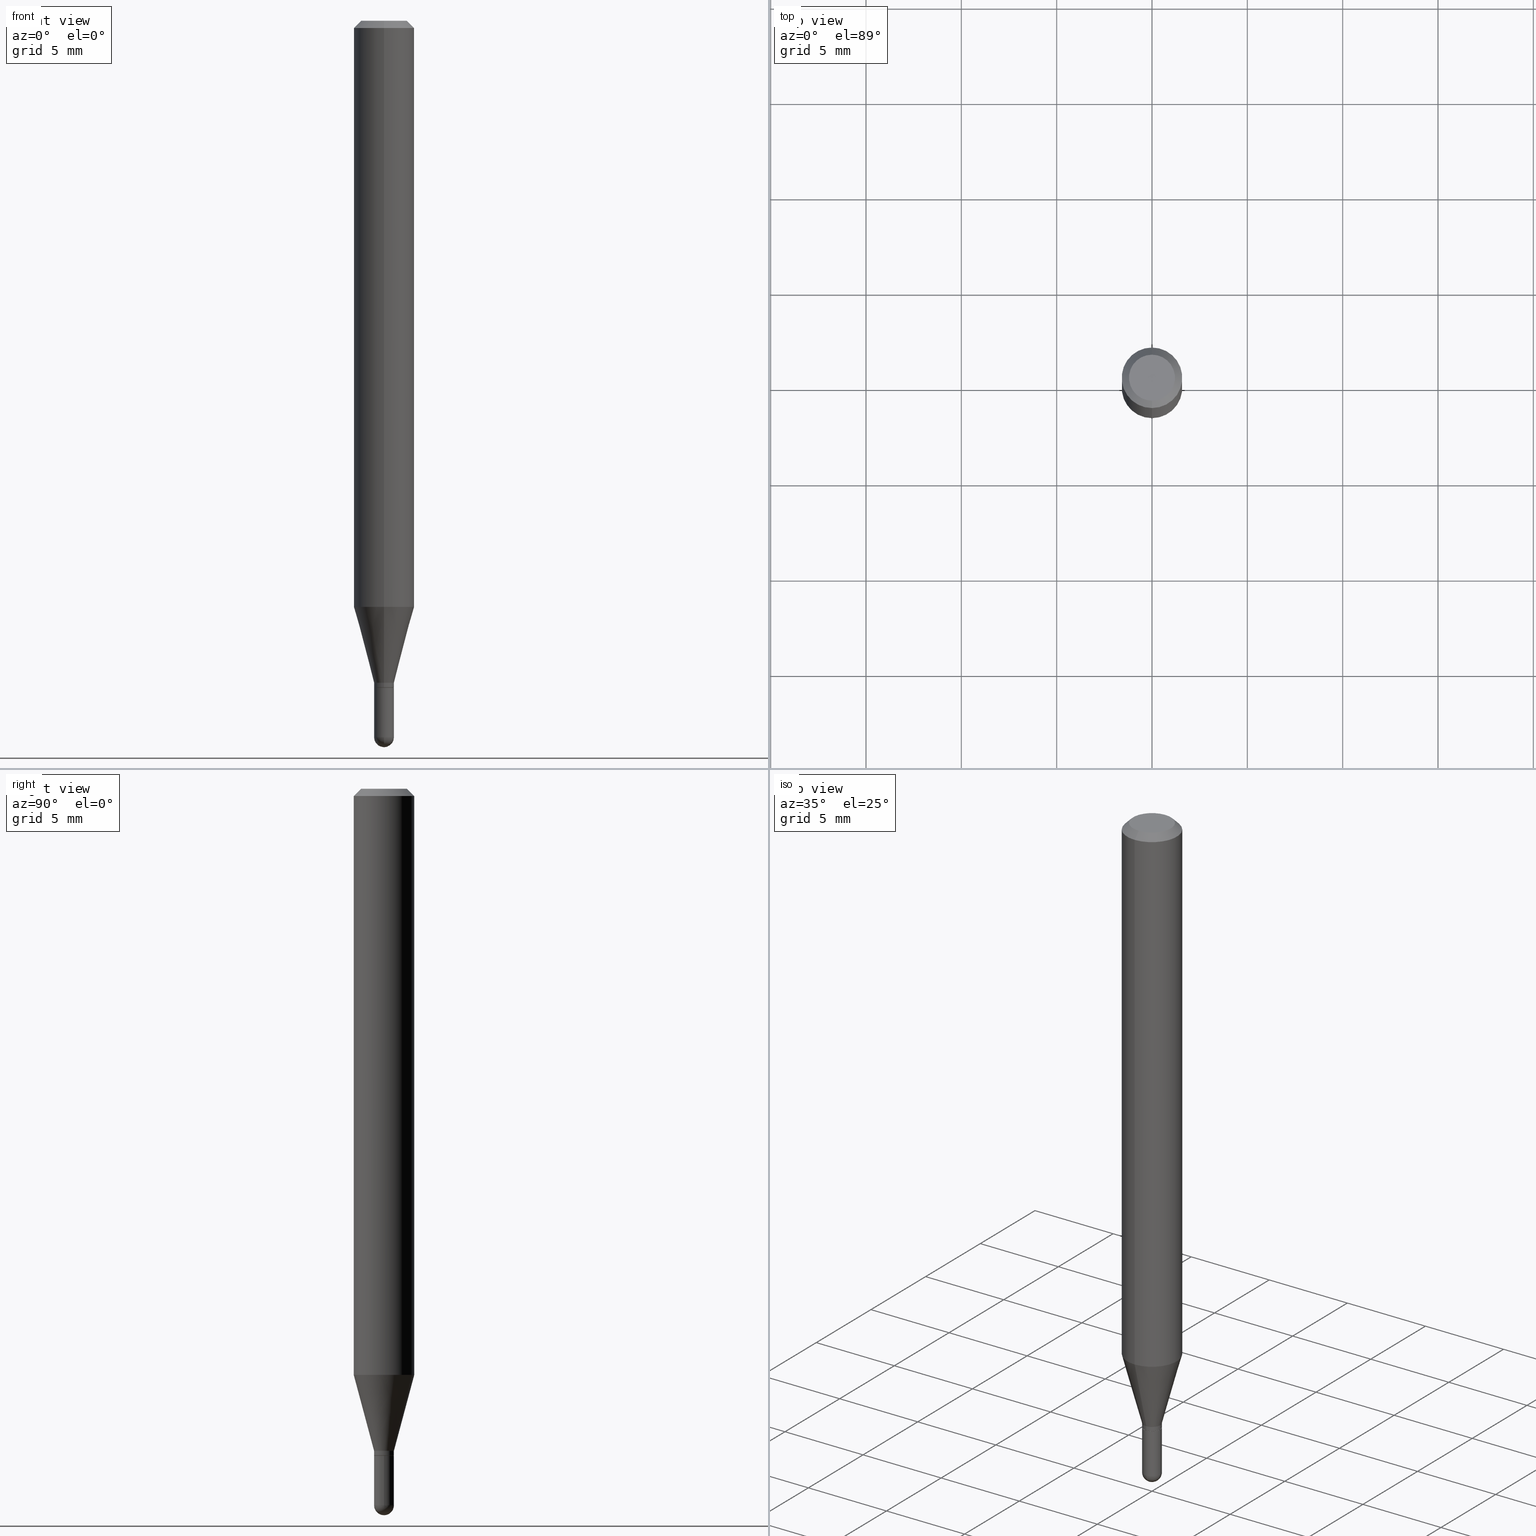
[diagram: canonical four-view strip — front | top / right | iso, engineering-drawing reading convention]
A machine part, canonical four-view strip (front | top / right | iso — engineering-drawing reading convention). The complete STEP part file that produces these views, byte-faithful:
ISO-10303-21;
HEADER;
FILE_DESCRIPTION (( 'STEP AP203' ),
    '1' );
FILE_NAME ('02572.STEP',
    '2024-03-07T20:30:37',
    ( '' ),
    ( '' ),
    'SwSTEP 2.0',
    'SolidWorks 2023',
    '' );
FILE_SCHEMA (( 'CONFIG_CONTROL_DESIGN' ));
ENDSEC;

DATA;
#1 = VERTEX_POINT ( 'NONE', #176 ) ;
#2 = CARTESIAN_POINT ( 'NONE',  ( 3.618071098750910124E-29, -5.165646640818434953E-15, -1.479500000000000259 ) ) ;
#3 = VERTEX_POINT ( 'NONE', #367 ) ;
#4 = EDGE_CURVE ( 'NONE', #44, #3, #402, .T. ) ;
#5 = CARTESIAN_POINT ( 'NONE',  ( 3.365955792450699475E-29, -4.806356327708124914E-15, -1.376500000000000279 ) ) ;
#6 = CONICAL_SURFACE ( 'NONE', #311, 0.02000000000000000042, 0.7853981633974739252 ) ;
#7 = AXIS2_PLACEMENT_3D ( 'NONE', #284, #55, #471 ) ;
#8 = PERSON_AND_ORGANIZATION ( #374, #202 ) ;
#9 = DIRECTION ( 'NONE',  ( -4.851104656540964275E-15, -0.7071067811865500152, -0.7071067811865450192 ) ) ;
#10 = LINE ( 'NONE', #246, #138 ) ;
#11 = FACE_OUTER_BOUND ( 'NONE', #241, .T. ) ;
#12 = CYLINDRICAL_SURFACE ( 'NONE', #157, 0.06250000000000000000 ) ;
#13 = PERSON_AND_ORGANIZATION_ROLE ( 'design_owner' ) ;
#14 = APPROVAL_PERSON_ORGANIZATION ( #184, #380, #447 ) ;
#15 = VERTEX_POINT ( 'NONE', #490 ) ;
#16 = EDGE_CURVE ( 'NONE', #127, #327, #251, .T. ) ;
#17 = APPROVAL_DATE_TIME ( #59, #217 ) ;
#18 = FACE_OUTER_BOUND ( 'NONE', #46, .T. ) ;
#19 = PERSON_AND_ORGANIZATION ( #374, #202 ) ;
#20 = ADVANCED_FACE ( 'NONE', ( #11 ), #369, .F. ) ;
#21 = FACE_OUTER_BOUND ( 'NONE', #238, .T. ) ;
#22 = VERTEX_POINT ( 'NONE', #409 ) ;
#23 = CIRCLE ( 'NONE', #201, 0.04749999999999999362 ) ;
#24 = DIMENSIONAL_EXPONENTS ( 1.000000000000000000, 0.000000000000000000, 0.000000000000000000, 0.000000000000000000, 0.000000000000000000, 0.000000000000000000, 0.000000000000000000 ) ;
#25 = CARTESIAN_POINT ( 'NONE',  ( 3.667950373175560417E-31, -5.237584083953756737E-17, -0.01500000000000032904 ) ) ;
#26 =( GEOMETRIC_REPRESENTATION_CONTEXT ( 3 ) GLOBAL_UNCERTAINTY_ASSIGNED_CONTEXT ( ( #325 ) ) GLOBAL_UNIT_ASSIGNED_CONTEXT ( ( #93, #215, #408 ) ) REPRESENTATION_CONTEXT ( 'NONE', 'WORKASPACE' ) );
#27 = DIRECTION ( 'NONE',  ( -2.445300248783653263E-29, 3.491722722635760763E-15, 1.000000000000000000 ) ) ;
#28 = ADVANCED_FACE ( 'NONE', ( #90 ), #12, .T. ) ;
#29 = DIRECTION ( 'NONE',  ( -6.982962677686266711E-15, -1.000000000000000000, 3.491722722635760763E-15 ) ) ;
#30 = LINE ( 'NONE', #111, #58 ) ;
#31 = CIRCLE ( 'NONE', #167, 0.02000000000000000042 ) ;
#32 = AXIS2_PLACEMENT_3D ( 'NONE', #358, #511, #192 ) ;
#33 = ORIENTED_EDGE ( 'NONE', *, *, #165, .T. ) ;
#34 = DIRECTION ( 'NONE',  ( 5.024295867788190974E-15, 0.7071067811865681119, 0.7071067811865270336 ) ) ;
#35 = EDGE_CURVE ( 'NONE', #3, #127, #77, .T. ) ;
#36 = ORIENTED_EDGE ( 'NONE', *, *, #365, .F. ) ;
#37 = DIRECTION ( 'NONE',  ( -2.445300248783653263E-29, 3.491722722635761158E-15, 1.000000000000000000 ) ) ;
#38 = DIRECTION ( 'NONE',  ( -6.982962677686265133E-15, -1.000000000000000000, 0.000000000000000000 ) ) ;
#39 = ORIENTED_EDGE ( 'NONE', *, *, #271, .F. ) ;
#40 = AXIS2_PLACEMENT_3D ( 'NONE', #144, #298, #83 ) ;
#41 = ORIENTED_EDGE ( 'NONE', *, *, #389, .T. ) ;
#42 = CIRCLE ( 'NONE', #464, 0.06250000000000000000 ) ;
#43 = CARTESIAN_POINT ( 'NONE',  ( 3.618071098750910124E-29, -5.165646640818434953E-15, -1.479500000000000259 ) ) ;
#44 = VERTEX_POINT ( 'NONE', #141 ) ;
#45 = MECHANICAL_CONTEXT ( 'NONE', #315, 'mechanical' ) ;
#46 = EDGE_LOOP ( 'NONE', ( #398, #292, #276, #392 ) ) ;
#47 = CARTESIAN_POINT ( 'NONE',  ( 2.959434079821957539E-29, -4.225870924356675261E-15, -1.210253866082108276 ) ) ;
#48 = ORIENTED_EDGE ( 'NONE', *, *, #400, .F. ) ;
#49 = CIRCLE ( 'NONE', #220, 0.02049999999999999392 ) ;
#50 = DIRECTION ( 'NONE',  ( -6.982962677686265922E-15, -1.000000000000000000, 3.491722722635761158E-15 ) ) ;
#51 = DIRECTION ( 'NONE',  ( -2.445300248783652983E-29, 3.491722722635760763E-15, 1.000000000000000000 ) ) ;
#52 = EDGE_CURVE ( 'NONE', #44, #386, #116, .T. ) ;
#53 = CYLINDRICAL_SURFACE ( 'NONE', #354, 0.02049999999999992800 ) ;
#54 = ORIENTED_EDGE ( 'NONE', *, *, #75, .T. ) ;
#55 = DIRECTION ( 'NONE',  ( -2.445300248783653263E-29, 3.491722722635761158E-15, 1.000000000000000000 ) ) ;
#56 = DIRECTION ( 'NONE',  ( -2.445300248783653263E-29, 3.491722722635761158E-15, 1.000000000000000000 ) ) ;
#57 = CIRCLE ( 'NONE', #473, 0.02049999999999999392 ) ;
#58 = VECTOR ( 'NONE', #122, 39.37007874015748143 ) ;
#59 = DATE_AND_TIME ( #231, #373 ) ;
#60 = CC_DESIGN_APPROVAL ( #217, ( #434 ) ) ;
#61 = FACE_OUTER_BOUND ( 'NONE', #308, .T. ) ;
#62 = COORDINATED_UNIVERSAL_TIME_OFFSET ( 5, 0, .BEHIND. ) ;
#63 = FACE_OUTER_BOUND ( 'NONE', #203, .T. ) ;
#64 = DATE_TIME_ROLE ( 'classification_date' ) ;
#65 = DIRECTION ( 'NONE',  ( -6.982962677686265922E-15, -1.000000000000000000, 3.483106191921935554E-15 ) ) ;
#66 = CALENDAR_DATE ( 2024, 7, 3 ) ;
#67 = DIRECTION ( 'NONE',  ( 1.000000000000000000, -6.982962677686267499E-15, 4.876176775795935232E-29 ) ) ;
#68 = CIRCLE ( 'NONE', #421, 0.02049999999999992453 ) ;
#69 = CC_DESIGN_PERSON_AND_ORGANIZATION_ASSIGNMENT ( #19, #497, ( #479 ) ) ;
#70 = EDGE_CURVE ( 'NONE', #481, #283, #478, .T. ) ;
#71 = DIRECTION ( 'NONE',  ( 6.982962677686265922E-15, 1.000000000000000000, -3.491722722635760763E-15 ) ) ;
#72 = ADVANCED_BREP_SHAPE_REPRESENTATION ( '02572', ( #181, #175, #413 ), #26 ) ;
#73 = DIRECTION ( 'NONE',  ( 1.000000000000000000, -6.982962677686264344E-15, 0.000000000000000000 ) ) ;
#74 = ORIENTED_EDGE ( 'NONE', *, *, #365, .T. ) ;
#75 = EDGE_CURVE ( 'NONE', #405, #82, #411, .T. ) ;
#76 = CARTESIAN_POINT ( 'NONE',  ( -1.396592535536916646E-16, -0.02000000000000480560, -1.377000000000000002 ) ) ;
#77 = CIRCLE ( 'NONE', #227, 0.02049999999999993494 ) ;
#78 = EDGE_LOOP ( 'NONE', ( #163, #85, #41, #249, #81 ) ) ;
#79 = DIRECTION ( 'NONE',  ( 6.982962677686265922E-15, 1.000000000000000000, -3.483106191921935554E-15 ) ) ;
#80 = DIRECTION ( 'NONE',  ( -2.445300248783653263E-29, 3.491722722635761158E-15, 1.000000000000000000 ) ) ;
#81 = ORIENTED_EDGE ( 'NONE', *, *, #457, .F. ) ;
#82 = VERTEX_POINT ( 'NONE', #232 ) ;
#83 = DIRECTION ( 'NONE',  ( -6.982962677686266711E-15, -1.000000000000000000, 0.000000000000000000 ) ) ;
#84 = EDGE_CURVE ( 'NONE', #22, #283, #105, .T. ) ;
#85 = ORIENTED_EDGE ( 'NONE', *, *, #278, .T. ) ;
#86 = CARTESIAN_POINT ( 'NONE',  ( 3.616318007858092069E-29, -5.168157166756686411E-15, -1.479500000000000259 ) ) ;
#87 = ORIENTED_EDGE ( 'NONE', *, *, #476, .F. ) ;
#88 = ORIENTED_EDGE ( 'NONE', *, *, #487, .F. ) ;
#89 = FACE_OUTER_BOUND ( 'NONE', #462, .T. ) ;
#90 = FACE_OUTER_BOUND ( 'NONE', #218, .T. ) ;
#91 = VECTOR ( 'NONE', #51, 39.37007874015748143 ) ;
#92 = CIRCLE ( 'NONE', #503, 0.02049999999999999392 ) ;
#93 =( CONVERSION_BASED_UNIT ( 'INCH', #206 ) LENGTH_UNIT ( ) NAMED_UNIT ( #24 ) );
#94 = ORIENTED_EDGE ( 'NONE', *, *, #459, .T. ) ;
#95 = CARTESIAN_POINT ( 'NONE',  ( -3.773273898774340269E-16, -0.04749999999999999362, -1.622786526568118338E-16 ) ) ;
#96 = VERTEX_POINT ( 'NONE', #98 ) ;
#97 = DATE_TIME_ROLE ( 'creation_date' ) ;
#98 = CARTESIAN_POINT ( 'NONE',  ( 1.456612608308570783E-16, 0.02049999999999488690, -1.479500000000000259 ) ) ;
#99 = ADVANCED_FACE ( 'NONE', ( #449 ), #339, .T. ) ;
#100 = CIRCLE ( 'NONE', #448, 0.06250000000000000000 ) ;
#101 = CIRCLE ( 'NONE', #396, 0.04749999999999999362 ) ;
#102 = PERSON_AND_ORGANIZATION_ROLE ( 'classification_officer' ) ;
#103 = CARTESIAN_POINT ( 'NONE',  ( 2.948752353404729004E-16, 0.02049999999999516098, -1.367000000000000437 ) ) ;
#104 = APPROVAL_DATE_TIME ( #267, #380 ) ;
#105 = LINE ( 'NONE', #452, #125 ) ;
#106 = PERSON_AND_ORGANIZATION_ROLE ( 'creator' ) ;
#107 = FACE_OUTER_BOUND ( 'NONE', #118, .T. ) ;
#108 = CIRCLE ( 'NONE', #190, 0.02049999999999993494 ) ;
#109 = DIRECTION ( 'NONE',  ( 2.445300248783653263E-29, -3.491722722635761158E-15, -1.000000000000000000 ) ) ;
#110 = LOCAL_TIME ( 15, 30, 37.00000000000000000, #333 ) ;
#111 = CARTESIAN_POINT ( 'NONE',  ( 0.02049999999999999739, -1.431507348925684695E-16, 9.996162390381665713E-31 ) ) ;
#112 = EDGE_CURVE ( 'NONE', #3, #22, #268, .T. ) ;
#113 = DIRECTION ( 'NONE',  ( -6.982962677686265133E-15, -1.000000000000000000, 0.000000000000000000 ) ) ;
#114 = ORIENTED_EDGE ( 'NONE', *, *, #75, .F. ) ;
#115 = LINE ( 'NONE', #306, #426 ) ;
#116 = CIRCLE ( 'NONE', #235, 0.02049999999999992453 ) ;
#117 = VECTOR ( 'NONE', #34, 39.37007874015748143 ) ;
#118 = EDGE_LOOP ( 'NONE', ( #427, #205, #352, #507 ) ) ;
#119 = FACE_OUTER_BOUND ( 'NONE', #198, .T. ) ;
#120 = ORIENTED_EDGE ( 'NONE', *, *, #324, .F. ) ;
#121 = ADVANCED_FACE ( 'NONE', ( #383 ), #266, .T. ) ;
#122 = DIRECTION ( 'NONE',  ( -2.445468806185136877E-29, 3.491481338843145188E-15, 1.000000000000000000 ) ) ;
#123 = ORIENTED_EDGE ( 'NONE', *, *, #500, .T. ) ;
#124 = DIRECTION ( 'NONE',  ( 1.000000000000000000, 0.000000000000000000, 0.000000000000000000 ) ) ;
#125 = VECTOR ( 'NONE', #142, 39.37007874015748143 ) ;
#126 = VECTOR ( 'NONE', #443, 39.37007874015748143 ) ;
#127 = VERTEX_POINT ( 'NONE', #103 ) ;
#128 = CIRCLE ( 'NONE', #428, 0.06250000000000000000 ) ;
#129 = DIRECTION ( 'NONE',  ( -6.982962677686267499E-15, -1.000000000000000000, 0.000000000000000000 ) ) ;
#130 = EDGE_LOOP ( 'NONE', ( #54, #338, #433, #407 ) ) ;
#131 = CARTESIAN_POINT ( 'NONE',  ( -4.287811248607203282E-16, -0.06250000000000005551, -0.01500000000000011047 ) ) ;
#132 = EDGE_CURVE ( 'NONE', #405, #44, #498, .T. ) ;
#133 = CARTESIAN_POINT ( 'NONE',  ( 3.840629472727447874E-16, 0.04749999999999999362, -4.939923113072091241E-16 ) ) ;
#134 = CARTESIAN_POINT ( 'NONE',  ( 1.431507348926021194E-16, 0.02049999999999519568, -1.377000000000000002 ) ) ;
#135 = PRODUCT_RELATED_PRODUCT_CATEGORY ( 'detail', '', ( #214 ) ) ;
#136 = DIRECTION ( 'NONE',  ( -2.445300248783652983E-29, 3.491722722635760763E-15, 1.000000000000000000 ) ) ;
#137 = ORIENTED_EDGE ( 'NONE', *, *, #52, .T. ) ;
#138 = VECTOR ( 'NONE', #136, 39.37007874015748143 ) ;
#139 = ORIENTED_EDGE ( 'NONE', *, *, #400, .T. ) ;
#140 = APPLICATION_PROTOCOL_DEFINITION ( 'international standard', 'config_control_design', 1994, #470 ) ;
#141 = CARTESIAN_POINT ( 'NONE',  ( -1.431507348925347704E-16, -0.02050000000000479911, -1.376500000000000279 ) ) ;
#142 = DIRECTION ( 'NONE',  ( -2.445300248783652983E-29, 3.491722722635760763E-15, 1.000000000000000000 ) ) ;
#143 = APPROVAL_PERSON_ORGANIZATION ( #145, #347, #410 ) ;
#144 = CARTESIAN_POINT ( 'NONE',  ( 3.616318007858092069E-29, -5.168157166756686411E-15, -1.479500000000000259 ) ) ;
#145 = PERSON_AND_ORGANIZATION ( #374, #202 ) ;
#146 = PLANE ( 'NONE',  #420 ) ;
#147 = PERSON_AND_ORGANIZATION ( #374, #202 ) ;
#148 = DIRECTION ( 'NONE',  ( -6.982962677686265922E-15, -1.000000000000000000, 3.491722722635761158E-15 ) ) ;
#149 = CLOSED_SHELL ( 'NONE', ( #357, #346, #363, #28, #496, #265, #99, #254, #153, #248, #199, #465 ) ) ;
#150 = CARTESIAN_POINT ( 'NONE',  ( -0.02050000000000000086, -4.841046961371903070E-15, -1.377000000000000002 ) ) ;
#151 = CC_DESIGN_APPROVAL ( #347, ( #479 ) ) ;
#152 = CARTESIAN_POINT ( 'NONE',  ( 0.000000000000000000, 0.000000000000000000, 0.000000000000000000 ) ) ;
#153 = ADVANCED_FACE ( 'NONE', ( #499 ), #146, .F. ) ;
#154 = ORIENTED_EDGE ( 'NONE', *, *, #463, .T. ) ;
#155 = DIRECTION ( 'NONE',  ( -2.445300248783653263E-29, 3.491722722635761158E-15, 1.000000000000000000 ) ) ;
#156 = DIRECTION ( 'NONE',  ( -2.445468806185136597E-29, 3.491481338843145583E-15, 1.000000000000000000 ) ) ;
#157 = AXIS2_PLACEMENT_3D ( 'NONE', #172, #329, #488 ) ;
#158 = LOCAL_TIME ( 15, 30, 37.00000000000000000, #62 ) ;
#159 = EDGE_LOOP ( 'NONE', ( #114, #120 ) ) ;
#160 = DIRECTION ( 'NONE',  ( 1.000000000000000000, -6.982962677686264344E-15, 0.000000000000000000 ) ) ;
#161 = ORIENTED_EDGE ( 'NONE', *, *, #4, .T. ) ;
#162 = DIRECTION ( 'NONE',  ( 0.000000000000000000, 0.000000000000000000, 1.000000000000000000 ) ) ;
#163 = ORIENTED_EDGE ( 'NONE', *, *, #351, .F. ) ;
#164 = CARTESIAN_POINT ( 'NONE',  ( 3.618071098750910124E-29, -5.165646640818434953E-15, -1.479500000000000259 ) ) ;
#165 = EDGE_CURVE ( 'NONE', #469, #481, #23, .T. ) ;
#166 = CARTESIAN_POINT ( 'NONE',  ( 1.456612608308534545E-16, 0.02049999999999516098, -1.367000000000000437 ) ) ;
#167 = AXIS2_PLACEMENT_3D ( 'NONE', #458, #194, #384 ) ;
#168 = CIRCLE ( 'NONE', #286, 0.02050000000000000086 ) ;
#169 = ORIENTED_EDGE ( 'NONE', *, *, #506, .T. ) ;
#170 = EDGE_CURVE ( 'NONE', #482, #283, #455, .T. ) ;
#171 = ORIENTED_EDGE ( 'NONE', *, *, #451, .T. ) ;
#172 = CARTESIAN_POINT ( 'NONE',  ( 0.000000000000000000, 0.000000000000000000, 0.000000000000000000 ) ) ;
#173 = PRODUCT_DEFINITION_FORMATION_WITH_SPECIFIED_SOURCE ( 'ANY', '', #214, .NOT_KNOWN. ) ;
#174 = COORDINATED_UNIVERSAL_TIME_OFFSET ( 5, 0, .BEHIND. ) ;
#175 = MANIFOLD_SOLID_BREP ( 'Body-Move/Copy2[2]', #149 ) ;
#176 = CARTESIAN_POINT ( 'NONE',  ( 0.02049999999999999392, -5.129858957095291369E-15, -1.479500000000000259 ) ) ;
#177 = DIRECTION ( 'NONE',  ( 6.982962677686265922E-15, 1.000000000000000000, -3.483106191921935554E-15 ) ) ;
#178 = DATE_AND_TIME ( #414, #211 ) ;
#179 = DIRECTION ( 'NONE',  ( -2.445468806185136597E-29, 3.491481338843145583E-15, 1.000000000000000000 ) ) ;
#180 = CC_DESIGN_DATE_AND_TIME_ASSIGNMENT ( #178, #97, ( #479 ) ) ;
#181 = MANIFOLD_SOLID_BREP ( 'Body-Move/Copy2[1]', #484 ) ;
#182 = VECTOR ( 'NONE', #323, 39.37007874015748143 ) ;
#183 = CIRCLE ( 'NONE', #297, 0.02050000000000011188 ) ;
#184 = PERSON_AND_ORGANIZATION ( #374, #202 ) ;
#185 = DIRECTION ( 'NONE',  ( -2.445300248783653263E-29, 3.491722722635761158E-15, 1.000000000000000000 ) ) ;
#186 = PERSON_AND_ORGANIZATION ( #374, #202 ) ;
#187 = DIRECTION ( 'NONE',  ( -2.445300248783653263E-29, 3.491722722635761158E-15, 1.000000000000000000 ) ) ;
#188 = ORIENTED_EDGE ( 'NONE', *, *, #277, .F. ) ;
#189 = DIRECTION ( 'NONE',  ( -6.982962677686265922E-15, -1.000000000000000000, 0.000000000000000000 ) ) ;
#190 = AXIS2_PLACEMENT_3D ( 'NONE', #393, #348, #38 ) ;
#191 = LOCAL_TIME ( 15, 30, 37.00000000000000000, #335 ) ;
#192 = DIRECTION ( 'NONE',  ( 1.000000000000000000, -6.982962677686261977E-15, 0.000000000000000000 ) ) ;
#193 = ORIENTED_EDGE ( 'NONE', *, *, #112, .F. ) ;
#194 = DIRECTION ( 'NONE',  ( -2.445300248783653263E-29, 3.491722722635761158E-15, 1.000000000000000000 ) ) ;
#195 = ORIENTED_EDGE ( 'NONE', *, *, #278, .F. ) ;
#196 = DIRECTION ( 'NONE',  ( -6.982962677686266711E-15, -1.000000000000000000, 3.491722722635760763E-15 ) ) ;
#197 = CC_DESIGN_PERSON_AND_ORGANIZATION_ASSIGNMENT ( #8, #13, ( #214 ) ) ;
#198 = EDGE_LOOP ( 'NONE', ( #137, #216, #294, #213 ) ) ;
#199 = ADVANCED_FACE ( 'NONE', ( #107 ), #6, .T. ) ;
#200 = CARTESIAN_POINT ( 'NONE',  ( 3.342725440087255398E-29, -4.773184961843087404E-15, -1.367000000000000437 ) ) ;
#201 = AXIS2_PLACEMENT_3D ( 'NONE', #417, #300, #29 ) ;
#202 = ORGANIZATION ( 'UNSPECIFIED', 'UNSPECIFIED', '' ) ;
#203 = EDGE_LOOP ( 'NONE', ( #509, #123, #257, #242 ) ) ;
#204 = DIRECTION ( 'NONE',  ( 2.445300248783653263E-29, -3.491722722635761158E-15, -1.000000000000000000 ) ) ;
#205 = ORIENTED_EDGE ( 'NONE', *, *, #324, .T. ) ;
#206 = LENGTH_MEASURE_WITH_UNIT ( LENGTH_MEASURE( 0.02539999999999999897 ), #253 );
#207 = DIRECTION ( 'NONE',  ( -1.000000000000000000, 6.982962677686265922E-15, -4.876176775795935793E-29 ) ) ;
#208 = ADVANCED_FACE ( 'NONE', ( #61 ), #341, .T. ) ;
#209 = CARTESIAN_POINT ( 'NONE',  ( 3.342725440087255398E-29, -4.773184961843087404E-15, -1.367000000000000437 ) ) ;
#210 = AXIS2_PLACEMENT_3D ( 'NONE', #222, #109, #177 ) ;
#211 = LOCAL_TIME ( 15, 30, 37.00000000000000000, #174 ) ;
#212 = DIRECTION ( 'NONE',  ( -2.445300248783653263E-29, 3.491722722635761158E-15, 1.000000000000000000 ) ) ;
#213 = ORIENTED_EDGE ( 'NONE', *, *, #4, .F. ) ;
#214 = PRODUCT ( '02572', '02572', '', ( #45 ) ) ;
#215 =( NAMED_UNIT ( * ) PLANE_ANGLE_UNIT ( ) SI_UNIT ( $, .RADIAN. ) );
#216 = ORIENTED_EDGE ( 'NONE', *, *, #487, .T. ) ;
#217 = APPROVAL ( #491, 'UNSPECIFIED' ) ;
#218 = EDGE_LOOP ( 'NONE', ( #94, #171, #424, #275 ) ) ;
#219 = CONICAL_SURFACE ( 'NONE', #502, 0.02049999999999993494, 0.2617993877991509621 ) ;
#220 = AXIS2_PLACEMENT_3D ( 'NONE', #2, #425, #73 ) ;
#221 = APPROVAL_DATE_TIME ( #296, #347 ) ;
#222 = CARTESIAN_POINT ( 'NONE',  ( 3.667950373175560417E-31, -5.237584083953756737E-17, -0.01500000000000032904 ) ) ;
#223 = SHAPE_DEFINITION_REPRESENTATION ( #376, #72 ) ;
#224 = VERTEX_POINT ( 'NONE', #453 ) ;
#225 = PERSON_AND_ORGANIZATION_ROLE ( 'design_supplier' ) ;
#226 = DIRECTION ( 'NONE',  ( -2.445300248783653263E-29, 3.491722722635761158E-15, 1.000000000000000000 ) ) ;
#227 = AXIS2_PLACEMENT_3D ( 'NONE', #209, #56, #332 ) ;
#228 = APPROVAL_PERSON_ORGANIZATION ( #229, #217, #416 ) ;
#229 = PERSON_AND_ORGANIZATION ( #374, #202 ) ;
#230 = DIRECTION ( 'NONE',  ( -1.807323732225334872E-15, -0.2588190451025188521, 0.9659258262890687563 ) ) ;
#231 = CALENDAR_DATE ( 2024, 7, 3 ) ;
#232 = CARTESIAN_POINT ( 'NONE',  ( 1.438849039914536462E-16, 0.01999999999999519523, -1.377000000000000002 ) ) ;
#233 = DIRECTION ( 'NONE',  ( -6.982962677686265922E-15, -1.000000000000000000, 3.491722722635761158E-15 ) ) ;
#234 = VERTEX_POINT ( 'NONE', #150 ) ;
#235 = AXIS2_PLACEMENT_3D ( 'NONE', #5, #247, #399 ) ;
#236 = CONICAL_SURFACE ( 'NONE', #7, 0.02049999999999993494, 0.2617993877991509621 ) ;
#237 = LINE ( 'NONE', #388, #117 ) ;
#238 = EDGE_LOOP ( 'NONE', ( #350, #512, #472, #87 ) ) ;
#239 = CARTESIAN_POINT ( 'NONE',  ( 8.023897757253542570E-45, -1.145758118539623279E-30, -3.281354819820104789E-16 ) ) ;
#240 = DIRECTION ( 'NONE',  ( -2.445300248783653263E-29, 3.491722722635761158E-15, 1.000000000000000000 ) ) ;
#241 = EDGE_LOOP ( 'NONE', ( #295, #245 ) ) ;
#242 = ORIENTED_EDGE ( 'NONE', *, *, #389, .F. ) ;
#243 = DIRECTION ( 'NONE',  ( -2.445300248783653263E-29, 3.491722722635761158E-15, 1.000000000000000000 ) ) ;
#244 = AXIS2_PLACEMENT_3D ( 'NONE', #423, #240, #233 ) ;
#245 = ORIENTED_EDGE ( 'NONE', *, *, #457, .T. ) ;
#246 = CARTESIAN_POINT ( 'NONE',  ( 1.456612608308200019E-16, 0.02049999999999992800, -7.158031581403285425E-17 ) ) ;
#247 = DIRECTION ( 'NONE',  ( -2.445300248783653263E-29, 3.491722722635761158E-15, 1.000000000000000000 ) ) ;
#248 = ADVANCED_FACE ( 'NONE', ( #415 ), #454, .F. ) ;
#249 = ORIENTED_EDGE ( 'NONE', *, *, #277, .T. ) ;
#250 = DIRECTION ( 'NONE',  ( 1.000000000000000000, -6.982962677686261977E-15, 0.000000000000000000 ) ) ;
#251 = LINE ( 'NONE', #166, #182 ) ;
#252 = DESIGN_CONTEXT ( 'detailed design', #470, 'design' ) ;
#253 =( LENGTH_UNIT ( ) NAMED_UNIT ( * ) SI_UNIT ( $, .METRE. ) );
#254 = ADVANCED_FACE ( 'NONE', ( #18 ), #293, .T. ) ;
#255 = CARTESIAN_POINT ( 'NONE',  ( -1.431507348925679518E-16, -0.02049999999999992800, 7.158031581403285425E-17 ) ) ;
#256 = EDGE_CURVE ( 'NONE', #283, #482, #100, .T. ) ;
#257 = ORIENTED_EDGE ( 'NONE', *, *, #463, .F. ) ;
#258 = SECURITY_CLASSIFICATION_LEVEL ( 'unclassified' ) ;
#259 = CARTESIAN_POINT ( 'NONE',  ( 0.000000000000000000, 0.000000000000000000, 0.000000000000000000 ) ) ;
#260 = ADVANCED_FACE ( 'NONE', ( #63 ), #494, .T. ) ;
#261 = AXIS2_PLACEMENT_3D ( 'NONE', #397, #80, #460 ) ;
#262 = APPROVAL_STATUS ( 'not_yet_approved' ) ;
#263 = CARTESIAN_POINT ( 'NONE',  ( 3.367178442575091239E-29, -4.808102189069442885E-15, -1.377000000000000002 ) ) ;
#264 = DATE_AND_TIME ( #301, #158 ) ;
#265 = ADVANCED_FACE ( 'NONE', ( #21 ), #219, .T. ) ;
#266 = SPHERICAL_SURFACE ( 'NONE', #372, 0.02050000000000011188 ) ;
#267 = DATE_AND_TIME ( #489, #191 ) ;
#268 = LINE ( 'NONE', #501, #345 ) ;
#269 = AXIS2_PLACEMENT_3D ( 'NONE', #412, #179, #67 ) ;
#270 = CONICAL_SURFACE ( 'NONE', #320, 0.06250000000000000000, 0.7853981633974483900 ) ;
#271 = EDGE_CURVE ( 'NONE', #127, #3, #108, .T. ) ;
#272 = CARTESIAN_POINT ( 'NONE',  ( 3.667950373175560417E-31, -5.237584083953756737E-17, -0.01500000000000032904 ) ) ;
#273 = CYLINDRICAL_SURFACE ( 'NONE', #244, 0.02049999999999992800 ) ;
#274 = DIRECTION ( 'NONE',  ( 1.000000000000000000, -6.982962677686264344E-15, 0.000000000000000000 ) ) ;
#275 = ORIENTED_EDGE ( 'NONE', *, *, #84, .F. ) ;
#276 = ORIENTED_EDGE ( 'NONE', *, *, #340, .T. ) ;
#277 = EDGE_CURVE ( 'NONE', #1, #342, #30, .T. ) ;
#278 = EDGE_CURVE ( 'NONE', #15, #224, #57, .T. ) ;
#279 = CARTESIAN_POINT ( 'NONE',  ( -0.02049999999999999739, 1.456612608308205196E-16, -1.008381693502255444E-30 ) ) ;
#280 = CARTESIAN_POINT ( 'NONE',  ( -4.364351673553912750E-16, -0.06250000000000005551, -0.01500000000000011047 ) ) ;
#281 = ORIENTED_EDGE ( 'NONE', *, *, #256, .T. ) ;
#282 = CYLINDRICAL_SURFACE ( 'NONE', #385, 0.02049999999999999739 ) ;
#283 = VERTEX_POINT ( 'NONE', #280 ) ;
#284 = CARTESIAN_POINT ( 'NONE',  ( 3.342725440087255398E-29, -4.773184961843087404E-15, -1.367000000000000437 ) ) ;
#285 = AXIS2_PLACEMENT_3D ( 'NONE', #343, #27, #302 ) ;
#286 = AXIS2_PLACEMENT_3D ( 'NONE', #366, #401, #250 ) ;
#287 = CARTESIAN_POINT ( 'NONE',  ( 3.367178442575091239E-29, -4.808102189069442885E-15, -1.377000000000000002 ) ) ;
#288 = DIRECTION ( 'NONE',  ( 1.000000000000000000, -6.982962677686264344E-15, 0.000000000000000000 ) ) ;
#289 = ORIENTED_EDGE ( 'NONE', *, *, #351, .T. ) ;
#290 = CC_DESIGN_PERSON_AND_ORGANIZATION_ASSIGNMENT ( #147, #225, ( #173 ) ) ;
#291 = DIRECTION ( 'NONE',  ( 1.000000000000000000, -7.105427357601001070E-15, 4.926315508542082329E-29 ) ) ;
#292 = ORIENTED_EDGE ( 'NONE', *, *, #165, .F. ) ;
#293 = CONICAL_SURFACE ( 'NONE', #210, 0.06250000000000000000, 0.7853981633974483900 ) ;
#294 = ORIENTED_EDGE ( 'NONE', *, *, #35, .F. ) ;
#295 = ORIENTED_EDGE ( 'NONE', *, *, #378, .T. ) ;
#296 = DATE_AND_TIME ( #66, #110 ) ;
#297 = AXIS2_PLACEMENT_3D ( 'NONE', #86, #291, #322 ) ;
#298 = DIRECTION ( 'NONE',  ( 1.000000000000000000, -6.982962677686266711E-15, 4.883557194083113462E-29 ) ) ;
#299 = PERSON_AND_ORGANIZATION ( #374, #202 ) ;
#300 = DIRECTION ( 'NONE',  ( -2.445300248783653263E-29, 3.491722722635761158E-15, 1.000000000000000000 ) ) ;
#301 = CALENDAR_DATE ( 2024, 7, 3 ) ;
#302 = DIRECTION ( 'NONE',  ( -6.982962677686265922E-15, -1.000000000000000000, 3.491722722635760763E-15 ) ) ;
#303 = CC_DESIGN_APPROVAL ( #380, ( #173 ) ) ;
#304 = DIRECTION ( 'NONE',  ( 4.937700262164548042E-15, 0.7071067811865451302, -0.7071067811865499042 ) ) ;
#305 = ORIENTED_EDGE ( 'NONE', *, *, #378, .F. ) ;
#306 = CARTESIAN_POINT ( 'NONE',  ( 4.364351673553919652E-16, 0.06249999999999995143, -0.01500000000000054588 ) ) ;
#307 = ADVANCED_FACE ( 'NONE', ( #468 ), #282, .T. ) ;
#308 = EDGE_LOOP ( 'NONE', ( #139, #289, #305, #188, #154 ) ) ;
#309 = CARTESIAN_POINT ( 'NONE',  ( 3.365955792450699475E-29, -4.806356327708124914E-15, -1.376500000000000279 ) ) ;
#310 = ORIENTED_EDGE ( 'NONE', *, *, #84, .T. ) ;
#311 = AXIS2_PLACEMENT_3D ( 'NONE', #263, #226, #189 ) ;
#312 = DIRECTION ( 'NONE',  ( -6.982962677686265133E-15, -1.000000000000000000, 0.000000000000000000 ) ) ;
#313 = ORIENTED_EDGE ( 'NONE', *, *, #459, .F. ) ;
#314 = CARTESIAN_POINT ( 'NONE',  ( 3.667950373175560417E-31, -5.237584083953756737E-17, -0.01500000000000032904 ) ) ;
#315 = APPLICATION_CONTEXT ( 'configuration controlled 3d designs of mechanical parts and assemblies' ) ;
#316 = EDGE_LOOP ( 'NONE', ( #36, #318, #281, #364 ) ) ;
#317 = CARTESIAN_POINT ( 'NONE',  ( 3.616318007858092069E-29, -5.168157166756686411E-15, -1.479500000000000259 ) ) ;
#318 = ORIENTED_EDGE ( 'NONE', *, *, #70, .T. ) ;
#319 = CARTESIAN_POINT ( 'NONE',  ( 3.665573572938478934E-29, -5.240987797172098125E-15, -1.500000000000000444 ) ) ;
#320 = AXIS2_PLACEMENT_3D ( 'NONE', #314, #204, #79 ) ;
#321 = EDGE_LOOP ( 'NONE', ( #360, #169, #195, #48 ) ) ;
#322 = DIRECTION ( 'NONE',  ( 7.105427357601000281E-15, 1.000000000000000000, 0.000000000000000000 ) ) ;
#323 = DIRECTION ( 'NONE',  ( 1.839019923739605048E-15, 0.2588190451025256245, 0.9659258262890669799 ) ) ;
#324 = EDGE_CURVE ( 'NONE', #82, #405, #31, .T. ) ;
#325 = UNCERTAINTY_MEASURE_WITH_UNIT (LENGTH_MEASURE( 1.000000000000000082E-05 ), #93, 'distance_accuracy_value', 'NONE');
#326 = CARTESIAN_POINT ( 'NONE',  ( 0.000000000000000000, 0.000000000000000000, 0.000000000000000000 ) ) ;
#327 = VERTEX_POINT ( 'NONE', #432 ) ;
#328 = DIRECTION ( 'NONE',  ( -2.445468806185136597E-29, 3.491481338843145583E-15, 1.000000000000000000 ) ) ;
#329 = DIRECTION ( 'NONE',  ( -2.445300248783653263E-29, 3.491722722635761158E-15, 1.000000000000000000 ) ) ;
#330 = CIRCLE ( 'NONE', #510, 0.02050000000000011188 ) ;
#331 = APPROVAL_STATUS ( 'not_yet_approved' ) ;
#332 = DIRECTION ( 'NONE',  ( -6.982962677686265133E-15, -1.000000000000000000, 0.000000000000000000 ) ) ;
#333 = COORDINATED_UNIVERSAL_TIME_OFFSET ( 5, 0, .BEHIND. ) ;
#334 = DIRECTION ( 'NONE',  ( -6.982962677686265922E-15, -1.000000000000000000, 3.483106191921935554E-15 ) ) ;
#335 = COORDINATED_UNIVERSAL_TIME_OFFSET ( 5, 0, .BEHIND. ) ;
#336 = CARTESIAN_POINT ( 'NONE',  ( 3.316907271900976096E-16, 0.04749999999999999362, -3.299245703162038599E-16 ) ) ;
#337 = VECTOR ( 'NONE', #446, 39.37007874015748143 ) ;
#338 = ORIENTED_EDGE ( 'NONE', *, *, #418, .T. ) ;
#339 = CYLINDRICAL_SURFACE ( 'NONE', #403, 0.06250000000000000000 ) ;
#340 = EDGE_CURVE ( 'NONE', #469, #482, #115, .T. ) ;
#341 = CYLINDRICAL_SURFACE ( 'NONE', #269, 0.02049999999999999739 ) ;
#342 = VERTEX_POINT ( 'NONE', #349 ) ;
#343 = CARTESIAN_POINT ( 'NONE',  ( 3.367178442575091239E-29, -4.808102189069442885E-15, -1.377000000000000002 ) ) ;
#344 = VECTOR ( 'NONE', #9, 39.37007874015748143 ) ;
#345 = VECTOR ( 'NONE', #230, 39.37007874015748854 ) ;
#346 = ADVANCED_FACE ( 'NONE', ( #391 ), #486, .T. ) ;
#347 = APPROVAL ( #331, 'UNSPECIFIED' ) ;
#348 = DIRECTION ( 'NONE',  ( -2.445300248783653263E-29, 3.491722722635761158E-15, 1.000000000000000000 ) ) ;
#349 = CARTESIAN_POINT ( 'NONE',  ( 0.02050000000000000086, -4.950920538479579759E-15, -1.377000000000000002 ) ) ;
#350 = ORIENTED_EDGE ( 'NONE', *, *, #16, .F. ) ;
#351 = EDGE_CURVE ( 'NONE', #15, #234, #505, .T. ) ;
#352 = ORIENTED_EDGE ( 'NONE', *, *, #132, .T. ) ;
#353 = CARTESIAN_POINT ( 'NONE',  ( 1.456612608308531340E-16, 0.02049999999999504996, -1.376500000000000279 ) ) ;
#354 = AXIS2_PLACEMENT_3D ( 'NONE', #326, #485, #50 ) ;
#355 = DIRECTION ( 'NONE',  ( -2.445468806185136597E-29, 3.491481338843145583E-15, 1.000000000000000000 ) ) ;
#356 = ORIENTED_EDGE ( 'NONE', *, *, #16, .T. ) ;
#357 = ADVANCED_FACE ( 'NONE', ( #119 ), #273, .T. ) ;
#358 = CARTESIAN_POINT ( 'NONE',  ( 3.367410546116933466E-29, -4.807769803587011733E-15, -1.377000000000000002 ) ) ;
#359 = EDGE_LOOP ( 'NONE', ( #88, #445, #161, #39 ) ) ;
#360 = ORIENTED_EDGE ( 'NONE', *, *, #500, .F. ) ;
#361 = AXIS2_PLACEMENT_3D ( 'NONE', #25, #185, #65 ) ;
#362 = CARTESIAN_POINT ( 'NONE',  ( 0.000000000000000000, 0.000000000000000000, 0.000000000000000000 ) ) ;
#363 = ADVANCED_FACE ( 'NONE', ( #508 ), #270, .T. ) ;
#364 = ORIENTED_EDGE ( 'NONE', *, *, #340, .F. ) ;
#365 = EDGE_CURVE ( 'NONE', #481, #469, #101, .T. ) ;
#366 = CARTESIAN_POINT ( 'NONE',  ( 3.367410546116933466E-29, -4.807769803587011733E-15, -1.377000000000000002 ) ) ;
#367 = CARTESIAN_POINT ( 'NONE',  ( -1.431507348925345485E-16, -0.02050000000000470543, -1.367000000000000437 ) ) ;
#368 = CARTESIAN_POINT ( 'NONE',  ( 4.440892098500922971E-16, 0.06249999999999995143, -0.01500000000000054588 ) ) ;
#369 = PLANE ( 'NONE',  #441 ) ;
#370 = CARTESIAN_POINT ( 'NONE',  ( 2.959434079821957539E-29, -4.225870924356675261E-15, -1.210253866082108276 ) ) ;
#371 = EDGE_LOOP ( 'NONE', ( #467, #431, #310, #390 ) ) ;
#372 = AXIS2_PLACEMENT_3D ( 'NONE', #419, #422, #382 ) ;
#373 = LOCAL_TIME ( 15, 30, 37.00000000000000000, #493 ) ;
#374 = PERSON ( 'UNSPECIFIED', 'UNSPECIFIED', 'UNSPECIFIED', ('UNSPECIFIED'), ('UNSPECIFIED'), ('UNSPECIFIED') ) ;
#375 = DIRECTION ( 'NONE',  ( -2.445300248783653263E-29, 3.491722722635761158E-15, 1.000000000000000000 ) ) ;
#376 = PRODUCT_DEFINITION_SHAPE ( 'NONE', 'NONE',  #479 ) ;
#377 = DIRECTION ( 'NONE',  ( -6.982962677686265922E-15, -1.000000000000000000, 0.000000000000000000 ) ) ;
#378 = EDGE_CURVE ( 'NONE', #342, #234, #474, .T. ) ;
#379 = CARTESIAN_POINT ( 'NONE',  ( -1.396592535536916646E-16, -0.02000000000000480560, -1.377000000000000002 ) ) ;
#380 = APPROVAL ( #262, 'UNSPECIFIED' ) ;
#381 = AXIS2_PLACEMENT_3D ( 'NONE', #164, #328, #288 ) ;
#382 = DIRECTION ( 'NONE',  ( -6.982962677686266711E-15, -1.000000000000000000, 0.000000000000000000 ) ) ;
#383 = FACE_OUTER_BOUND ( 'NONE', #321, .T. ) ;
#384 = DIRECTION ( 'NONE',  ( -6.982962677686265922E-15, -1.000000000000000000, 0.000000000000000000 ) ) ;
#385 = AXIS2_PLACEMENT_3D ( 'NONE', #152, #355, #430 ) ;
#386 = VERTEX_POINT ( 'NONE', #353 ) ;
#387 = VECTOR ( 'NONE', #429, 39.37007874015748143 ) ;
#388 = CARTESIAN_POINT ( 'NONE',  ( 1.421085471520536653E-16, 0.01999999999999519523, -1.377000000000000002 ) ) ;
#389 = EDGE_CURVE ( 'NONE', #224, #1, #92, .T. ) ;
#390 = ORIENTED_EDGE ( 'NONE', *, *, #170, .F. ) ;
#391 = FACE_OUTER_BOUND ( 'NONE', #130, .T. ) ;
#392 = ORIENTED_EDGE ( 'NONE', *, *, #170, .T. ) ;
#393 = CARTESIAN_POINT ( 'NONE',  ( 3.342725440087255398E-29, -4.773184961843087404E-15, -1.367000000000000437 ) ) ;
#394 = CC_DESIGN_DATE_AND_TIME_ASSIGNMENT ( #264, #64, ( #434 ) ) ;
#395 = AXIS2_PLACEMENT_3D ( 'NONE', #287, #437, #377 ) ;
#396 = AXIS2_PLACEMENT_3D ( 'NONE', #239, #155, #196 ) ;
#397 = CARTESIAN_POINT ( 'NONE',  ( 3.367178442575091239E-29, -4.808102189069442885E-15, -1.377000000000000002 ) ) ;
#398 = ORIENTED_EDGE ( 'NONE', *, *, #70, .F. ) ;
#399 = DIRECTION ( 'NONE',  ( -6.982962677686265133E-15, -1.000000000000000000, 0.000000000000000000 ) ) ;
#400 = EDGE_CURVE ( 'NONE', #96, #15, #49, .T. ) ;
#401 = DIRECTION ( 'NONE',  ( -2.445468806185136597E-29, 3.491481338843145583E-15, 1.000000000000000000 ) ) ;
#402 = LINE ( 'NONE', #255, #91 ) ;
#403 = AXIS2_PLACEMENT_3D ( 'NONE', #259, #187, #148 ) ;
#404 = DIRECTION ( 'NONE',  ( -2.445300248783653263E-29, 3.491722722635761158E-15, 1.000000000000000000 ) ) ;
#405 = VERTEX_POINT ( 'NONE', #76 ) ;
#406 = CARTESIAN_POINT ( 'NONE',  ( 4.440892098500625669E-16, 0.06250000000000000000, -2.182326701647350723E-16 ) ) ;
#407 = ORIENTED_EDGE ( 'NONE', *, *, #132, .F. ) ;
#408 =( NAMED_UNIT ( * ) SI_UNIT ( $, .STERADIAN. ) SOLID_ANGLE_UNIT ( ) );
#409 = CARTESIAN_POINT ( 'NONE',  ( -4.364351673553621857E-16, -0.06250000000000424660, -1.210253866082108054 ) ) ;
#410 = APPROVAL_ROLE ( '' ) ;
#411 = CIRCLE ( 'NONE', #395, 0.02000000000000000042 ) ;
#412 = CARTESIAN_POINT ( 'NONE',  ( 0.000000000000000000, 0.000000000000000000, 0.000000000000000000 ) ) ;
#413 = AXIS2_PLACEMENT_3D ( 'NONE', #362, #162, #124 ) ;
#414 = CALENDAR_DATE ( 2024, 7, 3 ) ;
#415 = FACE_OUTER_BOUND ( 'NONE', #159, .T. ) ;
#416 = APPROVAL_ROLE ( '' ) ;
#417 = CARTESIAN_POINT ( 'NONE',  ( 8.023897757253542570E-45, -1.145758118539623279E-30, -3.281354819820104789E-16 ) ) ;
#418 = EDGE_CURVE ( 'NONE', #82, #386, #237, .T. ) ;
#419 = CARTESIAN_POINT ( 'NONE',  ( 3.616318007858092069E-29, -5.168157166756686411E-15, -1.479500000000000259 ) ) ;
#420 = AXIS2_PLACEMENT_3D ( 'NONE', #336, #492, #71 ) ;
#421 = AXIS2_PLACEMENT_3D ( 'NONE', #309, #37, #312 ) ;
#422 = DIRECTION ( 'NONE',  ( 1.000000000000000000, -6.982962677686266711E-15, 4.883557194083113462E-29 ) ) ;
#423 = CARTESIAN_POINT ( 'NONE',  ( 0.000000000000000000, 0.000000000000000000, 0.000000000000000000 ) ) ;
#424 = ORIENTED_EDGE ( 'NONE', *, *, #256, .F. ) ;
#425 = DIRECTION ( 'NONE',  ( -2.445468806185136597E-29, 3.491481338843145583E-15, 1.000000000000000000 ) ) ;
#426 = VECTOR ( 'NONE', #304, 39.37007874015748143 ) ;
#427 = ORIENTED_EDGE ( 'NONE', *, *, #418, .F. ) ;
#428 = AXIS2_PLACEMENT_3D ( 'NONE', #370, #212, #436 ) ;
#429 = DIRECTION ( 'NONE',  ( -2.445468806185136877E-29, 3.491481338843145188E-15, 1.000000000000000000 ) ) ;
#430 = DIRECTION ( 'NONE',  ( 1.000000000000000000, -6.982962677686267499E-15, 4.876176775795935232E-29 ) ) ;
#431 = ORIENTED_EDGE ( 'NONE', *, *, #476, .T. ) ;
#432 = CARTESIAN_POINT ( 'NONE',  ( 4.440892098500920012E-16, 0.06249999999999575340, -1.210253866082108720 ) ) ;
#433 = ORIENTED_EDGE ( 'NONE', *, *, #52, .F. ) ;
#434 = SECURITY_CLASSIFICATION ( '', '', #258 ) ;
#435 = APPLICATION_PROTOCOL_DEFINITION ( 'international standard', 'config_control_design', 1994, #315 ) ;
#436 = DIRECTION ( 'NONE',  ( -6.982962677686265922E-15, -1.000000000000000000, 4.370956789862821150E-15 ) ) ;
#437 = DIRECTION ( 'NONE',  ( -2.445300248783653263E-29, 3.491722722635761158E-15, 1.000000000000000000 ) ) ;
#438 = FACE_OUTER_BOUND ( 'NONE', #359, .T. ) ;
#439 = EDGE_LOOP ( 'NONE', ( #33, #74 ) ) ;
#440 = DIRECTION ( 'NONE',  ( 2.438088387897960049E-29, -3.491481338843145188E-15, -1.000000000000000000 ) ) ;
#441 = AXIS2_PLACEMENT_3D ( 'NONE', #134, #440, #207 ) ;
#442 = ORIENTED_EDGE ( 'NONE', *, *, #35, .T. ) ;
#443 = DIRECTION ( 'NONE',  ( -2.445300248783652983E-29, 3.491722722635760763E-15, 1.000000000000000000 ) ) ;
#444 = CC_DESIGN_PERSON_AND_ORGANIZATION_ASSIGNMENT ( #186, #106, ( #173 ) ) ;
#445 = ORIENTED_EDGE ( 'NONE', *, *, #450, .T. ) ;
#446 = DIRECTION ( 'NONE',  ( -4.937700262164674260E-15, -0.7071067811865632269, 0.7071067811865319186 ) ) ;
#447 = APPROVAL_ROLE ( '' ) ;
#448 = AXIS2_PLACEMENT_3D ( 'NONE', #272, #375, #334 ) ;
#449 = FACE_OUTER_BOUND ( 'NONE', #371, .T. ) ;
#450 = EDGE_CURVE ( 'NONE', #386, #44, #68, .T. ) ;
#451 = EDGE_CURVE ( 'NONE', #327, #482, #466, .T. ) ;
#452 = CARTESIAN_POINT ( 'NONE',  ( -4.364351673553916201E-16, -0.06250000000000000000, 2.182326701647350723E-16 ) ) ;
#453 = CARTESIAN_POINT ( 'NONE',  ( -1.431507348925326503E-16, -0.02050000000000521891, -1.479500000000000259 ) ) ;
#454 = PLANE ( 'NONE',  #285 ) ;
#455 = CIRCLE ( 'NONE', #361, 0.06250000000000000000 ) ;
#456 = CIRCLE ( 'NONE', #381, 0.02049999999999999392 ) ;
#457 = EDGE_CURVE ( 'NONE', #234, #342, #168, .T. ) ;
#458 = CARTESIAN_POINT ( 'NONE',  ( 3.367178442575091239E-29, -4.808102189069442885E-15, -1.377000000000000002 ) ) ;
#459 = EDGE_CURVE ( 'NONE', #22, #327, #42, .T. ) ;
#460 = DIRECTION ( 'NONE',  ( -6.982962677686265922E-15, -1.000000000000000000, 0.000000000000000000 ) ) ;
#461 = DIRECTION ( 'NONE',  ( -2.445468806185136597E-29, 3.491481338843145583E-15, 1.000000000000000000 ) ) ;
#462 = EDGE_LOOP ( 'NONE', ( #442, #356, #313, #193 ) ) ;
#463 = EDGE_CURVE ( 'NONE', #1, #96, #456, .T. ) ;
#464 = AXIS2_PLACEMENT_3D ( 'NONE', #47, #404, #480 ) ;
#465 = ADVANCED_FACE ( 'NONE', ( #438 ), #53, .T. ) ;
#466 = LINE ( 'NONE', #406, #126 ) ;
#467 = ORIENTED_EDGE ( 'NONE', *, *, #451, .F. ) ;
#468 = FACE_OUTER_BOUND ( 'NONE', #78, .T. ) ;
#469 = VERTEX_POINT ( 'NONE', #133 ) ;
#470 = APPLICATION_CONTEXT ( 'configuration controlled 3d designs of mechanical parts and assemblies' ) ;
#471 = DIRECTION ( 'NONE',  ( -6.982962677686265133E-15, -1.000000000000000000, 0.000000000000000000 ) ) ;
#472 = ORIENTED_EDGE ( 'NONE', *, *, #112, .T. ) ;
#473 = AXIS2_PLACEMENT_3D ( 'NONE', #43, #461, #160 ) ;
#474 = CIRCLE ( 'NONE', #32, 0.02050000000000000086 ) ;
#475 = DIRECTION ( 'NONE',  ( -1.000000000000000000, 6.982962677686265922E-15, -4.883557194083112340E-29 ) ) ;
#476 = EDGE_CURVE ( 'NONE', #327, #22, #128, .T. ) ;
#477 = VERTEX_POINT ( 'NONE', #319 ) ;
#478 = LINE ( 'NONE', #131, #344 ) ;
#479 = PRODUCT_DEFINITION ( 'UNKNOWN', '', #173, #252 ) ;
#480 = DIRECTION ( 'NONE',  ( -6.982962677686265922E-15, -1.000000000000000000, 4.370956789862821150E-15 ) ) ;
#481 = VERTEX_POINT ( 'NONE', #95 ) ;
#482 = VERTEX_POINT ( 'NONE', #368 ) ;
#483 = CC_DESIGN_PERSON_AND_ORGANIZATION_ASSIGNMENT ( #299, #102, ( #434 ) ) ;
#484 = CLOSED_SHELL ( 'NONE', ( #208, #260, #20, #121, #307 ) ) ;
#485 = DIRECTION ( 'NONE',  ( -2.445300248783653263E-29, 3.491722722635761158E-15, 1.000000000000000000 ) ) ;
#486 = CONICAL_SURFACE ( 'NONE', #261, 0.02000000000000000042, 0.7853981633974739252 ) ;
#487 = EDGE_CURVE ( 'NONE', #386, #127, #10, .T. ) ;
#488 = DIRECTION ( 'NONE',  ( -6.982962677686265922E-15, -1.000000000000000000, 3.491722722635761158E-15 ) ) ;
#489 = CALENDAR_DATE ( 2024, 7, 3 ) ;
#490 = CARTESIAN_POINT ( 'NONE',  ( -0.02049999999999999392, -4.841046961371903070E-15, -1.479500000000000259 ) ) ;
#491 = APPROVAL_STATUS ( 'not_yet_approved' ) ;
#492 = DIRECTION ( 'NONE',  ( 2.445300248783653263E-29, -3.491722722635760763E-15, -1.000000000000000000 ) ) ;
#493 = COORDINATED_UNIVERSAL_TIME_OFFSET ( 5, 0, .BEHIND. ) ;
#494 = SPHERICAL_SURFACE ( 'NONE', #40, 0.02050000000000011188 ) ;
#495 = CC_DESIGN_SECURITY_CLASSIFICATION ( #434, ( #173 ) ) ;
#496 = ADVANCED_FACE ( 'NONE', ( #89 ), #236, .T. ) ;
#497 = PERSON_AND_ORGANIZATION_ROLE ( 'creator' ) ;
#498 = LINE ( 'NONE', #379, #337 ) ;
#499 = FACE_OUTER_BOUND ( 'NONE', #439, .T. ) ;
#500 = EDGE_CURVE ( 'NONE', #477, #96, #183, .T. ) ;
#501 = CARTESIAN_POINT ( 'NONE',  ( -1.431507348925345485E-16, -0.02050000000000470543, -1.367000000000000437 ) ) ;
#502 = AXIS2_PLACEMENT_3D ( 'NONE', #200, #243, #113 ) ;
#503 = AXIS2_PLACEMENT_3D ( 'NONE', #504, #156, #274 ) ;
#504 = CARTESIAN_POINT ( 'NONE',  ( 3.618071098750910124E-29, -5.165646640818434953E-15, -1.479500000000000259 ) ) ;
#505 = LINE ( 'NONE', #279, #387 ) ;
#506 = EDGE_CURVE ( 'NONE', #477, #224, #330, .T. ) ;
#507 = ORIENTED_EDGE ( 'NONE', *, *, #450, .F. ) ;
#508 = FACE_OUTER_BOUND ( 'NONE', #316, .T. ) ;
#509 = ORIENTED_EDGE ( 'NONE', *, *, #506, .F. ) ;
#510 = AXIS2_PLACEMENT_3D ( 'NONE', #317, #475, #129 ) ;
#511 = DIRECTION ( 'NONE',  ( -2.445468806185136597E-29, 3.491481338843145583E-15, 1.000000000000000000 ) ) ;
#512 = ORIENTED_EDGE ( 'NONE', *, *, #271, .T. ) ;
ENDSEC;
END-ISO-10303-21;
